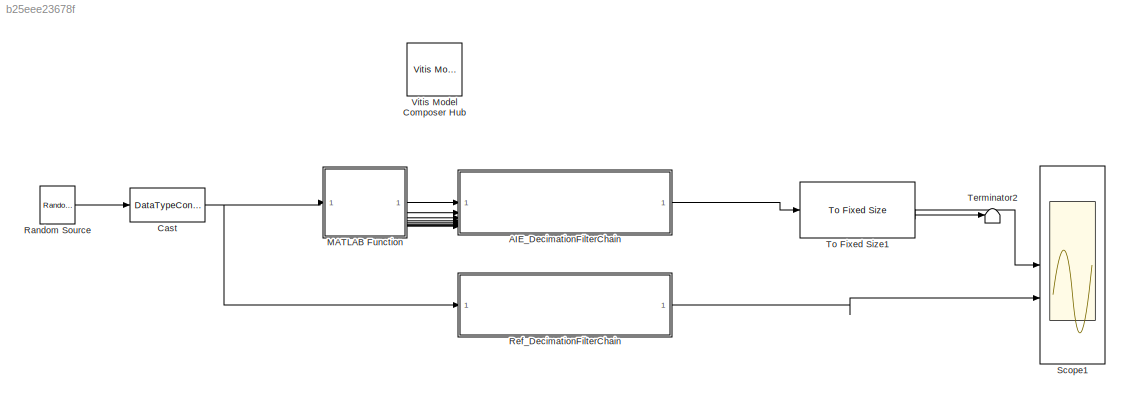
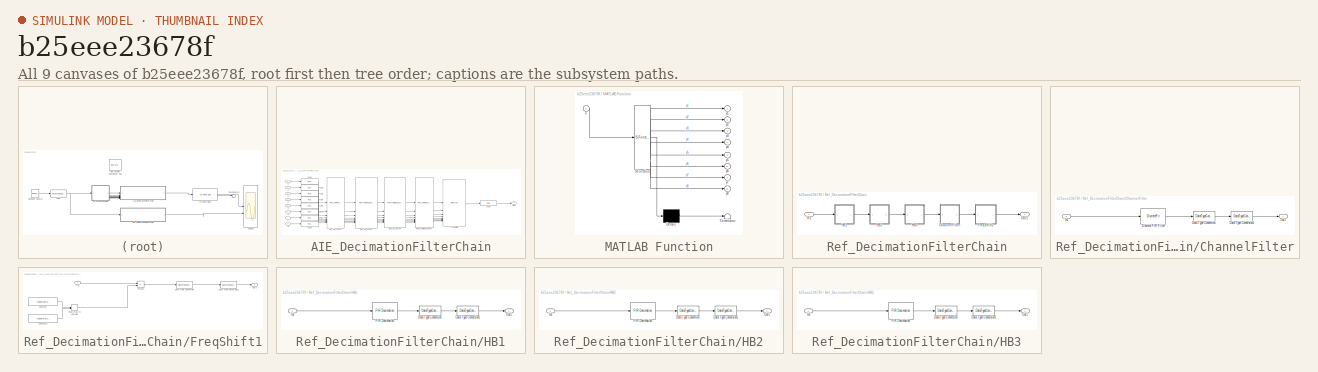
[diagram: thumbnail index - all 9 canvases of the model, root first then tree order]
MODEL slx_b25eee23678f
KIND model
CONFIG AbsTol = auto
CONFIG EnableMultiTasking = off
CONFIG FixedStep = auto
CONFIG MaxStep = auto
CONFIG MinStep = auto
CONFIG RelTol = 1e-3
CONFIG SampleTimeConstraint = Unconstrained
CONFIG SolverName = VariableStepAuto
CONFIG StartTime = 0.0
CONFIG StopTime = 5000
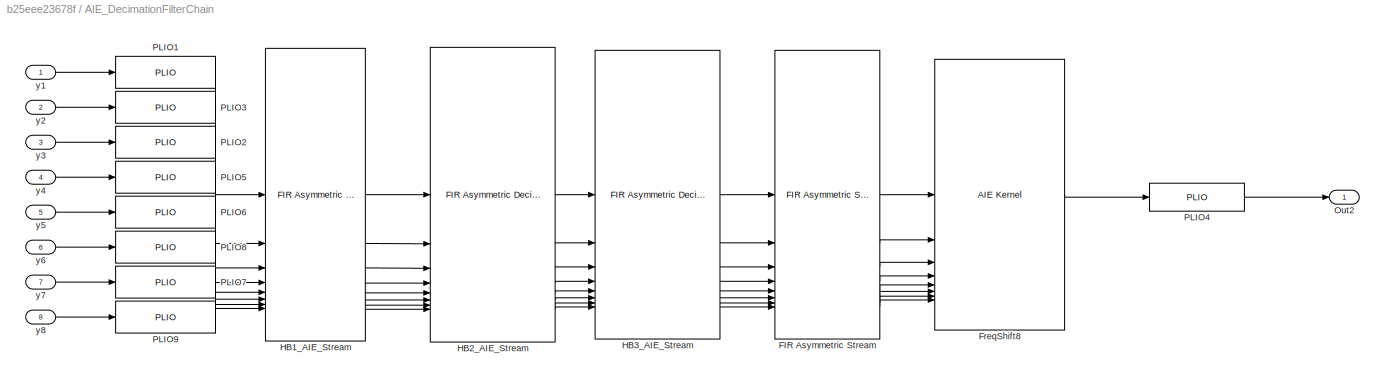
BLOCK [SubSystem] AIE_DecimationFilterChain
BLOCK [Reference] AIE_DecimationFilterChain/FIR Asymmetric Stream  REF=aieDSP/FIR Asymmetric Stream
  SourceBlock = aieDSP/FIR Asymmetric Stream
  SourceType = FIR Asymmetric Stream
BLOCK [Reference] AIE_DecimationFilterChain/FreqShift8  REF=aieBasic/AIE Kernel
  SourceBlock = aieBasic/AIE Kernel
  SourceType = AIE Kernel Function
BLOCK [Reference] AIE_DecimationFilterChain/HB1_AIE_Stream  REF=aieDSP/FIR Asymmetric Decimation Stream
  SourceBlock = aieDSP/FIR Asymmetric Decimation Stream
  SourceType = FIR Asymmetric Decimation Stream
BLOCK [Reference] AIE_DecimationFilterChain/HB2_AIE_Stream  REF=aieDSP/FIR Asymmetric Decimation Stream
  SourceBlock = aieDSP/FIR Asymmetric Decimation Stream
  SourceType = FIR Asymmetric Decimation Stream
BLOCK [Reference] AIE_DecimationFilterChain/HB3_AIE_Stream  REF=aieDSP/FIR Asymmetric Decimation Stream
  SourceBlock = aieDSP/FIR Asymmetric Decimation Stream
  SourceType = FIR Asymmetric Decimation Stream
BLOCK [Outport] AIE_DecimationFilterChain/Out2
BLOCK [Reference] AIE_DecimationFilterChain/PLIO1  REF=aieBasic/PLIO
  SourceBlock = aieBasic/PLIO
  SourceType = PLIO
BLOCK [Reference] AIE_DecimationFilterChain/PLIO2  REF=aieBasic/PLIO
  SourceBlock = aieBasic/PLIO
  SourceType = PLIO
BLOCK [Reference] AIE_DecimationFilterChain/PLIO3  REF=aieBasic/PLIO
  SourceBlock = aieBasic/PLIO
  SourceType = PLIO
BLOCK [Reference] AIE_DecimationFilterChain/PLIO4  REF=aieBasic/PLIO
  SourceBlock = aieBasic/PLIO
  SourceType = PLIO
BLOCK [Reference] AIE_DecimationFilterChain/PLIO5  REF=aieBasic/PLIO
  SourceBlock = aieBasic/PLIO
  SourceType = PLIO
BLOCK [Reference] AIE_DecimationFilterChain/PLIO6  REF=aieBasic/PLIO
  SourceBlock = aieBasic/PLIO
  SourceType = PLIO
BLOCK [Reference] AIE_DecimationFilterChain/PLIO7  REF=aieBasic/PLIO
  SourceBlock = aieBasic/PLIO
  SourceType = PLIO
BLOCK [Reference] AIE_DecimationFilterChain/PLIO8  REF=aieBasic/PLIO
  SourceBlock = aieBasic/PLIO
  SourceType = PLIO
BLOCK [Reference] AIE_DecimationFilterChain/PLIO9  REF=aieBasic/PLIO
  SourceBlock = aieBasic/PLIO
  SourceType = PLIO
BLOCK [Inport] AIE_DecimationFilterChain/y1
BLOCK [Inport] AIE_DecimationFilterChain/y2
  Port = 2
BLOCK [Inport] AIE_DecimationFilterChain/y3
  Port = 3
BLOCK [Inport] AIE_DecimationFilterChain/y4
  Port = 4
BLOCK [Inport] AIE_DecimationFilterChain/y5
  Port = 5
BLOCK [Inport] AIE_DecimationFilterChain/y6
  Port = 6
BLOCK [Inport] AIE_DecimationFilterChain/y7
  Port = 7
BLOCK [Inport] AIE_DecimationFilterChain/y8
  Port = 8
BLOCK [DataTypeConversion] Cast
  OutDataTypeStr = int16
  RndMeth = Floor
  SaturateOnIntegerOverflow = off
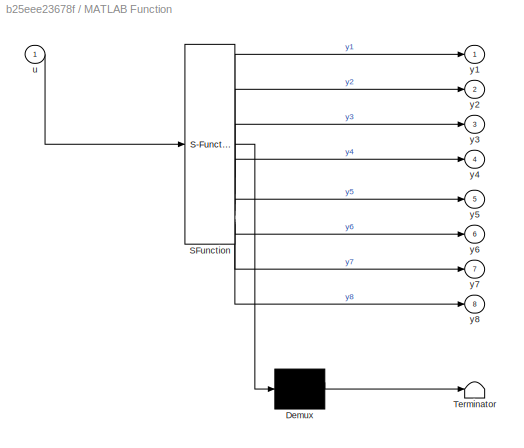
BLOCK [SubSystem] MATLAB Function
  ErrorFcn = Stateflow.Translate.translate
  PermitHierarchicalResolution = ExplicitOnly
  SFBlockType = MATLAB Function
  TreatAsAtomicUnit = on
BLOCK [Demux] MATLAB Function/ Demux 
  Outputs = 1
BLOCK [S-Function] MATLAB Function/ SFunction 
  EnableBusSupport = off
  FunctionName = sf_sfun
  PortCounts = [1 9]
  SFcnIsStateOwnerBlock = off
  SFunctionDeploymentMode = off
  Tag = Stateflow S-Function 2
BLOCK [Terminator] MATLAB Function/ Terminator 
BLOCK [Inport] MATLAB Function/u
BLOCK [Outport] MATLAB Function/y1
BLOCK [Outport] MATLAB Function/y2
  Port = 2
BLOCK [Outport] MATLAB Function/y3
  Port = 3
BLOCK [Outport] MATLAB Function/y4
  Port = 4
BLOCK [Outport] MATLAB Function/y5
  Port = 5
BLOCK [Outport] MATLAB Function/y6
  Port = 6
BLOCK [Outport] MATLAB Function/y7
  Port = 7
BLOCK [Outport] MATLAB Function/y8
  Port = 8
BLOCK [Reference] Random Source  REF=dspobslib/Random
Source
  SourceBlock = dspobslib/Random\nSource
  SourceType = Random Source Obsolete
  UserDataPersistent = on
BLOCK [SubSystem] Ref_DecimationFilterChain
BLOCK [SubSystem] Ref_DecimationFilterChain/ChannelFilter
BLOCK [DataTypeConversion] Ref_DecimationFilterChain/ChannelFilter/Data Type Conversion
  ConvertRealWorld = Stored Integer (SI)
  OutDataTypeStr = fixdt(1,32,Shift)
  RndMeth = Floor
  SaturateOnIntegerOverflow = off
BLOCK [DataTypeConversion] Ref_DecimationFilterChain/ChannelFilter/Data Type Conversion1
  OutDataTypeStr = int16
  RndMeth = Floor
BLOCK [DiscreteFir] Ref_DecimationFilterChain/ChannelFilter/Discrete FIR Filter
  Coefficients = COEFFS
  InputPortMap = u0
  InputProcessing = Columns as channels (frame based)
  OutputPortMap = o0
BLOCK [Inport] Ref_DecimationFilterChain/ChannelFilter/In1
BLOCK [Outport] Ref_DecimationFilterChain/ChannelFilter/Out1
BLOCK [SubSystem] Ref_DecimationFilterChain/FreqShift1
BLOCK [Constant] Ref_DecimationFilterChain/FreqShift1/Constant
  SampleTime = 2048
  Value = round(cos(2*pi*[0:255]/8)*16384)
BLOCK [Constant] Ref_DecimationFilterChain/FreqShift1/Constant1
  SampleTime = 2048
  Value = round(sin(2*pi*[0:255]/8)*16384)
BLOCK [DataTypeConversion] Ref_DecimationFilterChain/FreqShift1/Data Type Conversion
  ConvertRealWorld = Stored Integer (SI)
  OutDataTypeStr = fixdt(1,32,14)
  RndMeth = Floor
  SaturateOnIntegerOverflow = off
BLOCK [DataTypeConversion] Ref_DecimationFilterChain/FreqShift1/Data Type Conversion1
  OutDataTypeStr = int16
  RndMeth = Floor
BLOCK [Inport] Ref_DecimationFilterChain/FreqShift1/In1
BLOCK [Outport] Ref_DecimationFilterChain/FreqShift1/Out1
BLOCK [Product] Ref_DecimationFilterChain/FreqShift1/Product
BLOCK [RealImagToComplex] Ref_DecimationFilterChain/FreqShift1/Real-Imag to Complex
BLOCK [SubSystem] Ref_DecimationFilterChain/HB1
BLOCK [DataTypeConversion] Ref_DecimationFilterChain/HB1/Data Type Conversion
  ConvertRealWorld = Stored Integer (SI)
  OutDataTypeStr = fixdt(1,32,Shift)
  RndMeth = Floor
  SaturateOnIntegerOverflow = off
BLOCK [DataTypeConversion] Ref_DecimationFilterChain/HB1/Data Type Conversion1
  OutDataTypeStr = int16
  RndMeth = Floor
BLOCK [Reference] Ref_DecimationFilterChain/HB1/FIR Decimation  REF=dspmlti4/FIR
Decimation
  SourceBlock = dspmlti4/FIR\nDecimation
  SourceType = FIR Decimation
  UserDataPersistent = on
BLOCK [Inport] Ref_DecimationFilterChain/HB1/In1
BLOCK [Outport] Ref_DecimationFilterChain/HB1/Out1
BLOCK [SubSystem] Ref_DecimationFilterChain/HB2
BLOCK [DataTypeConversion] Ref_DecimationFilterChain/HB2/Data Type Conversion
  ConvertRealWorld = Stored Integer (SI)
  OutDataTypeStr = fixdt(1,32,Shift)
  RndMeth = Floor
  SaturateOnIntegerOverflow = off
BLOCK [DataTypeConversion] Ref_DecimationFilterChain/HB2/Data Type Conversion1
  OutDataTypeStr = int16
  RndMeth = Floor
BLOCK [Reference] Ref_DecimationFilterChain/HB2/FIR Decimation  REF=dspmlti4/FIR
Decimation
  SourceBlock = dspmlti4/FIR\nDecimation
  SourceType = FIR Decimation
  UserDataPersistent = on
BLOCK [Inport] Ref_DecimationFilterChain/HB2/In1
BLOCK [Outport] Ref_DecimationFilterChain/HB2/Out1
BLOCK [SubSystem] Ref_DecimationFilterChain/HB3
BLOCK [DataTypeConversion] Ref_DecimationFilterChain/HB3/Data Type Conversion
  ConvertRealWorld = Stored Integer (SI)
  OutDataTypeStr = fixdt(1,32,Shift)
  RndMeth = Floor
  SaturateOnIntegerOverflow = off
BLOCK [DataTypeConversion] Ref_DecimationFilterChain/HB3/Data Type Conversion1
  OutDataTypeStr = int16
  RndMeth = Floor
BLOCK [Reference] Ref_DecimationFilterChain/HB3/FIR Decimation  REF=dspmlti4/FIR
Decimation
  SourceBlock = dspmlti4/FIR\nDecimation
  SourceType = FIR Decimation
  UserDataPersistent = on
BLOCK [Inport] Ref_DecimationFilterChain/HB3/In1
BLOCK [Outport] Ref_DecimationFilterChain/HB3/Out1
BLOCK [Inport] Ref_DecimationFilterChain/In1
BLOCK [Outport] Ref_DecimationFilterChain/Out1
BLOCK [Scope] Scope1
  Floating = off
  NumInputPorts = 2
  ScopeSpecificationString = Simulink.scopes.TimeScopeBlockCfg('CurrentConfiguration', extmgr.ConfigurationSet(extmgr.Configuration('Core','General UI',true,'DisplayFullSourceName',false,'ShowMainToolbar',true),extmgr.Configuration('Sources','WiredSimulink',true,'DataLogging',false,'DataLoggingVariableName','ScopeData','DataLoggingLimitDataPoints',false,'DataLoggingMaxPoints','5000','DataLoggingDecimateData',false,'DataLoggin...<+2789ch>
BLOCK [Terminator] Terminator2
BLOCK [Reference] To Fixed Size1  REF=aieUtilities/To Fixed Size
  SourceBlock = aieUtilities/To Fixed Size
  SourceType = To Fixed Size
BLOCK [Reference] Vitis Model Composer Hub  REF=vmcUtilities/Vitis Model Composer Hub
  SourceBlock = vmcUtilities/Vitis Model Composer Hub
  SourceType = VMC Hub
  Tag = genX
  UserDataPersistent = on
LINE AIE_DecimationFilterChain/FIR Asymmetric Stream:1 -> AIE_DecimationFilterChain/FreqShift8:1
LINE AIE_DecimationFilterChain/FIR Asymmetric Stream:2 -> AIE_DecimationFilterChain/FreqShift8:2
LINE AIE_DecimationFilterChain/FIR Asymmetric Stream:3 -> AIE_DecimationFilterChain/FreqShift8:3
LINE AIE_DecimationFilterChain/FIR Asymmetric Stream:4 -> AIE_DecimationFilterChain/FreqShift8:4
LINE AIE_DecimationFilterChain/FIR Asymmetric Stream:5 -> AIE_DecimationFilterChain/FreqShift8:5
LINE AIE_DecimationFilterChain/FIR Asymmetric Stream:6 -> AIE_DecimationFilterChain/FreqShift8:6
LINE AIE_DecimationFilterChain/FIR Asymmetric Stream:7 -> AIE_DecimationFilterChain/FreqShift8:7
LINE AIE_DecimationFilterChain/FIR Asymmetric Stream:8 -> AIE_DecimationFilterChain/FreqShift8:8
LINE AIE_DecimationFilterChain/FreqShift8:1 -> AIE_DecimationFilterChain/PLIO4:1
LINE AIE_DecimationFilterChain/HB1_AIE_Stream:1 -> AIE_DecimationFilterChain/HB2_AIE_Stream:1
LINE AIE_DecimationFilterChain/HB1_AIE_Stream:2 -> AIE_DecimationFilterChain/HB2_AIE_Stream:2
LINE AIE_DecimationFilterChain/HB1_AIE_Stream:3 -> AIE_DecimationFilterChain/HB2_AIE_Stream:3
LINE AIE_DecimationFilterChain/HB1_AIE_Stream:4 -> AIE_DecimationFilterChain/HB2_AIE_Stream:4
LINE AIE_DecimationFilterChain/HB1_AIE_Stream:5 -> AIE_DecimationFilterChain/HB2_AIE_Stream:5
LINE AIE_DecimationFilterChain/HB1_AIE_Stream:6 -> AIE_DecimationFilterChain/HB2_AIE_Stream:6
LINE AIE_DecimationFilterChain/HB1_AIE_Stream:7 -> AIE_DecimationFilterChain/HB2_AIE_Stream:7
LINE AIE_DecimationFilterChain/HB1_AIE_Stream:8 -> AIE_DecimationFilterChain/HB2_AIE_Stream:8
LINE AIE_DecimationFilterChain/HB2_AIE_Stream:1 -> AIE_DecimationFilterChain/HB3_AIE_Stream:1
LINE AIE_DecimationFilterChain/HB2_AIE_Stream:2 -> AIE_DecimationFilterChain/HB3_AIE_Stream:2
LINE AIE_DecimationFilterChain/HB2_AIE_Stream:3 -> AIE_DecimationFilterChain/HB3_AIE_Stream:3
LINE AIE_DecimationFilterChain/HB2_AIE_Stream:4 -> AIE_DecimationFilterChain/HB3_AIE_Stream:4
LINE AIE_DecimationFilterChain/HB2_AIE_Stream:5 -> AIE_DecimationFilterChain/HB3_AIE_Stream:5
LINE AIE_DecimationFilterChain/HB2_AIE_Stream:6 -> AIE_DecimationFilterChain/HB3_AIE_Stream:6
LINE AIE_DecimationFilterChain/HB2_AIE_Stream:7 -> AIE_DecimationFilterChain/HB3_AIE_Stream:7
LINE AIE_DecimationFilterChain/HB2_AIE_Stream:8 -> AIE_DecimationFilterChain/HB3_AIE_Stream:8
LINE AIE_DecimationFilterChain/HB3_AIE_Stream:1 -> AIE_DecimationFilterChain/FIR Asymmetric Stream:1
LINE AIE_DecimationFilterChain/HB3_AIE_Stream:2 -> AIE_DecimationFilterChain/FIR Asymmetric Stream:2
LINE AIE_DecimationFilterChain/HB3_AIE_Stream:3 -> AIE_DecimationFilterChain/FIR Asymmetric Stream:3
LINE AIE_DecimationFilterChain/HB3_AIE_Stream:4 -> AIE_DecimationFilterChain/FIR Asymmetric Stream:4
LINE AIE_DecimationFilterChain/HB3_AIE_Stream:5 -> AIE_DecimationFilterChain/FIR Asymmetric Stream:5
LINE AIE_DecimationFilterChain/HB3_AIE_Stream:6 -> AIE_DecimationFilterChain/FIR Asymmetric Stream:6
LINE AIE_DecimationFilterChain/HB3_AIE_Stream:7 -> AIE_DecimationFilterChain/FIR Asymmetric Stream:7
LINE AIE_DecimationFilterChain/HB3_AIE_Stream:8 -> AIE_DecimationFilterChain/FIR Asymmetric Stream:8
LINE AIE_DecimationFilterChain/PLIO1:1 -> AIE_DecimationFilterChain/HB1_AIE_Stream:1
LINE AIE_DecimationFilterChain/PLIO2:1 -> AIE_DecimationFilterChain/HB1_AIE_Stream:3
LINE AIE_DecimationFilterChain/PLIO3:1 -> AIE_DecimationFilterChain/HB1_AIE_Stream:2
LINE AIE_DecimationFilterChain/PLIO4:1 -> AIE_DecimationFilterChain/Out2:1
LINE AIE_DecimationFilterChain/PLIO5:1 -> AIE_DecimationFilterChain/HB1_AIE_Stream:4
LINE AIE_DecimationFilterChain/PLIO6:1 -> AIE_DecimationFilterChain/HB1_AIE_Stream:5
LINE AIE_DecimationFilterChain/PLIO7:1 -> AIE_DecimationFilterChain/HB1_AIE_Stream:7
LINE AIE_DecimationFilterChain/PLIO8:1 -> AIE_DecimationFilterChain/HB1_AIE_Stream:6
LINE AIE_DecimationFilterChain/PLIO9:1 -> AIE_DecimationFilterChain/HB1_AIE_Stream:8
LINE AIE_DecimationFilterChain/y1:1 -> AIE_DecimationFilterChain/PLIO1:1
LINE AIE_DecimationFilterChain/y2:1 -> AIE_DecimationFilterChain/PLIO3:1
LINE AIE_DecimationFilterChain/y3:1 -> AIE_DecimationFilterChain/PLIO2:1
LINE AIE_DecimationFilterChain/y4:1 -> AIE_DecimationFilterChain/PLIO5:1
LINE AIE_DecimationFilterChain/y5:1 -> AIE_DecimationFilterChain/PLIO6:1
LINE AIE_DecimationFilterChain/y6:1 -> AIE_DecimationFilterChain/PLIO8:1
LINE AIE_DecimationFilterChain/y7:1 -> AIE_DecimationFilterChain/PLIO7:1
LINE AIE_DecimationFilterChain/y8:1 -> AIE_DecimationFilterChain/PLIO9:1
LINE AIE_DecimationFilterChain:1 -> To Fixed Size1:1
NET Cast:1 -> MATLAB Function:1, Ref_DecimationFilterChain:1
LINE MATLAB Function:1 -> AIE_DecimationFilterChain:1
LINE MATLAB Function:2 -> AIE_DecimationFilterChain:2
LINE MATLAB Function:3 -> AIE_DecimationFilterChain:3
LINE MATLAB Function:4 -> AIE_DecimationFilterChain:4
LINE MATLAB Function:5 -> AIE_DecimationFilterChain:5
LINE MATLAB Function:6 -> AIE_DecimationFilterChain:6
LINE MATLAB Function:7 -> AIE_DecimationFilterChain:7
LINE MATLAB Function:8 -> AIE_DecimationFilterChain:8
LINE Random Source:1 -> Cast:1
LINE Ref_DecimationFilterChain/ChannelFilter/Data Type Conversion1:1 -> Ref_DecimationFilterChain/ChannelFilter/Out1:1
LINE Ref_DecimationFilterChain/ChannelFilter/Data Type Conversion:1 -> Ref_DecimationFilterChain/ChannelFilter/Data Type Conversion1:1
LINE Ref_DecimationFilterChain/ChannelFilter/Discrete FIR Filter:1 -> Ref_DecimationFilterChain/ChannelFilter/Data Type Conversion:1
LINE Ref_DecimationFilterChain/ChannelFilter/In1:1 -> Ref_DecimationFilterChain/ChannelFilter/Discrete FIR Filter:1
LINE Ref_DecimationFilterChain/ChannelFilter:1 -> Ref_DecimationFilterChain/FreqShift1:1
LINE Ref_DecimationFilterChain/FreqShift1/Constant1:1 -> Ref_DecimationFilterChain/FreqShift1/Real-Imag to Complex:2
LINE Ref_DecimationFilterChain/FreqShift1/Constant:1 -> Ref_DecimationFilterChain/FreqShift1/Real-Imag to Complex:1
LINE Ref_DecimationFilterChain/FreqShift1/Data Type Conversion1:1 -> Ref_DecimationFilterChain/FreqShift1/Out1:1
LINE Ref_DecimationFilterChain/FreqShift1/Data Type Conversion:1 -> Ref_DecimationFilterChain/FreqShift1/Data Type Conversion1:1
LINE Ref_DecimationFilterChain/FreqShift1/In1:1 -> Ref_DecimationFilterChain/FreqShift1/Product:1
LINE Ref_DecimationFilterChain/FreqShift1/Product:1 -> Ref_DecimationFilterChain/FreqShift1/Data Type Conversion:1
LINE Ref_DecimationFilterChain/FreqShift1/Real-Imag to Complex:1 -> Ref_DecimationFilterChain/FreqShift1/Product:2
LINE Ref_DecimationFilterChain/FreqShift1:1 -> Ref_DecimationFilterChain/Out1:1
LINE Ref_DecimationFilterChain/HB1/Data Type Conversion1:1 -> Ref_DecimationFilterChain/HB1/Out1:1
LINE Ref_DecimationFilterChain/HB1/Data Type Conversion:1 -> Ref_DecimationFilterChain/HB1/Data Type Conversion1:1
LINE Ref_DecimationFilterChain/HB1/FIR Decimation:1 -> Ref_DecimationFilterChain/HB1/Data Type Conversion:1
LINE Ref_DecimationFilterChain/HB1/In1:1 -> Ref_DecimationFilterChain/HB1/FIR Decimation:1
LINE Ref_DecimationFilterChain/HB1:1 -> Ref_DecimationFilterChain/HB2:1
LINE Ref_DecimationFilterChain/HB2/Data Type Conversion1:1 -> Ref_DecimationFilterChain/HB2/Out1:1
LINE Ref_DecimationFilterChain/HB2/Data Type Conversion:1 -> Ref_DecimationFilterChain/HB2/Data Type Conversion1:1
LINE Ref_DecimationFilterChain/HB2/FIR Decimation:1 -> Ref_DecimationFilterChain/HB2/Data Type Conversion:1
LINE Ref_DecimationFilterChain/HB2/In1:1 -> Ref_DecimationFilterChain/HB2/FIR Decimation:1
LINE Ref_DecimationFilterChain/HB2:1 -> Ref_DecimationFilterChain/HB3:1
LINE Ref_DecimationFilterChain/HB3/Data Type Conversion1:1 -> Ref_DecimationFilterChain/HB3/Out1:1
LINE Ref_DecimationFilterChain/HB3/Data Type Conversion:1 -> Ref_DecimationFilterChain/HB3/Data Type Conversion1:1
LINE Ref_DecimationFilterChain/HB3/FIR Decimation:1 -> Ref_DecimationFilterChain/HB3/Data Type Conversion:1
LINE Ref_DecimationFilterChain/HB3/In1:1 -> Ref_DecimationFilterChain/HB3/FIR Decimation:1
LINE Ref_DecimationFilterChain/HB3:1 -> Ref_DecimationFilterChain/ChannelFilter:1
LINE Ref_DecimationFilterChain/In1:1 -> Ref_DecimationFilterChain/HB1:1
LINE Ref_DecimationFilterChain:1 -> Scope1:2
LINE To Fixed Size1:1 -> Scope1:1
LINE To Fixed Size1:2 -> Terminator2:1
note: NET lines group one-source signal fan-out (src -> all destinations, sorted); 1:1 wires keep LINE
CHART MATLAB Function states=1 transitions=1
  STATE_LABEL 'eML_blk_kernel()'
  STATE_LABEL 'SCRIPT:\nfunction [y1,y2,y3,y4,y5,y6,y7,y8] = fcn(u)\n\ny1 = u(1:8:end);\ny2 = u(2:8:end);\ny3 = u(3:8:end);\ny4 = u(4:8:end);\ny5 = u(5:8:end);\ny6 = u(6:8:end);\ny7 = u(7:8:end);\ny8 = u(8:8:end);\n\n'
CHART  states=0 transitions=0
